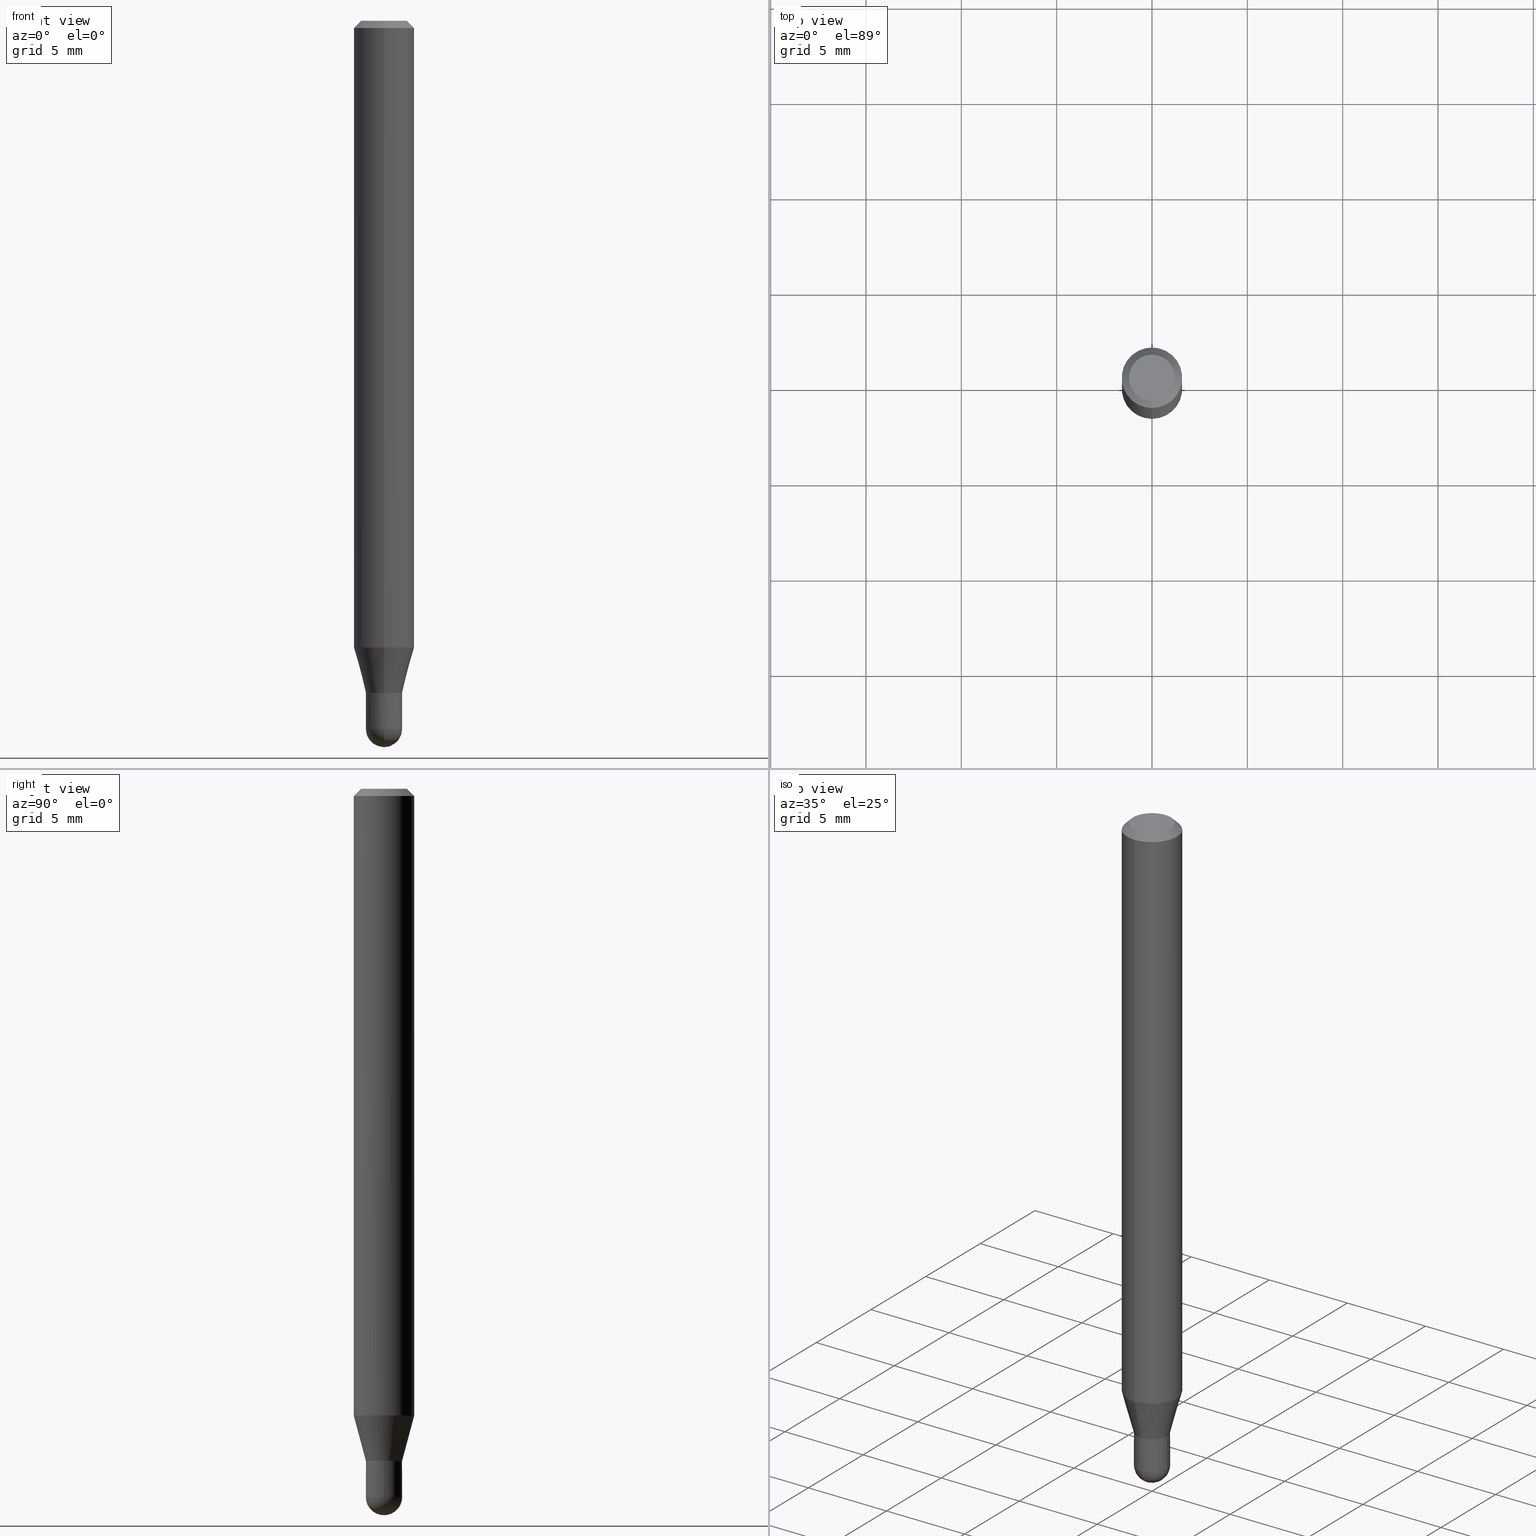
[diagram: canonical four-view strip — front | top / right | iso, engineering-drawing reading convention]
A machine part, canonical four-view strip (front | top / right | iso — engineering-drawing reading convention). The complete STEP part file that produces these views, byte-faithful:
ISO-10303-21;
HEADER;
FILE_DESCRIPTION (( 'STEP AP203' ),
    '1' );
FILE_NAME ('04376.STEP',
    '2024-03-08T18:59:31',
    ( '' ),
    ( '' ),
    'SwSTEP 2.0',
    'SolidWorks 2023',
    '' );
FILE_SCHEMA (( 'CONFIG_CONTROL_DESIGN' ));
ENDSEC;

DATA;
#1 = CALENDAR_DATE ( 2024, 8, 3 ) ;
#2 = EDGE_CURVE ( 'NONE', #266, #63, #361, .T. ) ;
#3 = AXIS2_PLACEMENT_3D ( 'NONE', #157, #316, #430 ) ;
#4 = DIRECTION ( 'NONE',  ( 2.445449223703286785E-29, -3.491509382071719844E-15, -1.000000000000000000 ) ) ;
#5 = EDGE_LOOP ( 'NONE', ( #209, #297, #113, #95 ) ) ;
#6 = CC_DESIGN_SECURITY_CLASSIFICATION ( #503, ( #38 ) ) ;
#7 = ADVANCED_FACE ( 'NONE', ( #278 ), #397, .T. ) ;
#8 = FACE_OUTER_BOUND ( 'NONE', #86, .T. ) ;
#9 = ORIENTED_EDGE ( 'NONE', *, *, #245, .T. ) ;
#10 = CARTESIAN_POINT ( 'NONE',  ( 3.668173835554947116E-31, -5.237264073107601830E-17, -0.01500000000000006710 ) ) ;
#11 = ORIENTED_EDGE ( 'NONE', *, *, #240, .F. ) ;
#12 = EDGE_CURVE ( 'NONE', #77, #261, #44, .T. ) ;
#13 = LINE ( 'NONE', #284, #219 ) ;
#14 = CYLINDRICAL_SURFACE ( 'NONE', #144, 0.06250000000000000000 ) ;
#15 = CARTESIAN_POINT ( 'NONE',  ( 2.646771690706718698E-16, 0.03699999999999514788, -1.387500000000000400 ) ) ;
#16 = CONICAL_SURFACE ( 'NONE', #468, 0.03750000000000018596, 0.2617993877991581231 ) ;
#17 = AXIS2_PLACEMENT_3D ( 'NONE', #451, #214, #413 ) ;
#18 = ORIENTED_EDGE ( 'NONE', *, *, #240, .T. ) ;
#19 = ADVANCED_FACE ( 'NONE', ( #118 ), #16, .T. ) ;
#20 = DIRECTION ( 'NONE',  ( -6.982962677686265922E-15, -1.000000000000000000, 3.491509382071719450E-15 ) ) ;
#21 = SPHERICAL_SURFACE ( 'NONE', #166, 0.03750000000000004718 ) ;
#22 = DIRECTION ( 'NONE',  ( -2.445468806185136597E-29, 3.491481338843145583E-15, 1.000000000000000000 ) ) ;
#23 = EDGE_CURVE ( 'NONE', #146, #261, #393, .T. ) ;
#24 = CIRCLE ( 'NONE', #441, 0.04749999999999999362 ) ;
#25 = AXIS2_PLACEMENT_3D ( 'NONE', #119, #433, #225 ) ;
#26 = FACE_OUTER_BOUND ( 'NONE', #138, .T. ) ;
#27 = ORIENTED_EDGE ( 'NONE', *, *, #509, .F. ) ;
#28 = VERTEX_POINT ( 'NONE', #115 ) ;
#29 = EDGE_CURVE ( 'NONE', #266, #478, #24, .T. ) ;
#30 = CALENDAR_DATE ( 2024, 8, 3 ) ;
#31 = ORIENTED_EDGE ( 'NONE', *, *, #213, .T. ) ;
#32 = DIRECTION ( 'NONE',  ( 1.000000000000000000, -6.982962677686265922E-15, 4.883557194083112901E-29 ) ) ;
#33 = ORIENTED_EDGE ( 'NONE', *, *, #162, .F. ) ;
#34 = APPROVAL_ROLE ( '' ) ;
#35 = CLOSED_SHELL ( 'NONE', ( #303, #325, #292, #291, #440 ) ) ;
#36 = AXIS2_PLACEMENT_3D ( 'NONE', #47, #194, #429 ) ;
#37 = CARTESIAN_POINT ( 'NONE',  ( -2.618611004132362835E-16, -0.03750000000000018596, 1.309316018276901351E-16 ) ) ;
#38 = PRODUCT_DEFINITION_FORMATION_WITH_SPECIFIED_SOURCE ( 'ANY', '', #140, .NOT_KNOWN. ) ;
#39 = ORIENTED_EDGE ( 'NONE', *, *, #29, .F. ) ;
#40 = COORDINATED_UNIVERSAL_TIME_OFFSET ( 5, 0, .BEHIND. ) ;
#41 = FACE_OUTER_BOUND ( 'NONE', #143, .T. ) ;
#42 = CARTESIAN_POINT ( 'NONE',  ( 3.393060797888311038E-29, -4.844469267624512368E-15, -1.387500000000000178 ) ) ;
#43 = CARTESIAN_POINT ( 'NONE',  ( 3.393060797888311598E-29, -4.844469267624513157E-15, -1.387500000000000400 ) ) ;
#44 = LINE ( 'NONE', #203, #480 ) ;
#45 = EDGE_CURVE ( 'NONE', #28, #148, #424, .T. ) ;
#46 = PERSON_AND_ORGANIZATION ( #437, #472 ) ;
#47 = CARTESIAN_POINT ( 'NONE',  ( 0.000000000000000000, 0.000000000000000000, 0.000000000000000000 ) ) ;
#48 = CIRCLE ( 'NONE', #252, 0.03749999999999999861 ) ;
#49 = CARTESIAN_POINT ( 'NONE',  ( -4.287811248607203282E-16, -0.06250000000000005551, -0.01499999999999984852 ) ) ;
#50 =( GEOMETRIC_REPRESENTATION_CONTEXT ( 3 ) GLOBAL_UNCERTAINTY_ASSIGNED_CONTEXT ( ( #208 ) ) GLOBAL_UNIT_ASSIGNED_CONTEXT ( ( #72, #425, #232 ) ) REPRESENTATION_CONTEXT ( 'NONE', 'WORKASPACE' ) );
#51 =( LENGTH_UNIT ( ) NAMED_UNIT ( * ) SI_UNIT ( $, .METRE. ) );
#52 = CARTESIAN_POINT ( 'NONE',  ( -2.618611004132032993E-16, -0.03750000000000516809, -1.387000000000000233 ) ) ;
#53 = EDGE_CURVE ( 'NONE', #77, #381, #403, .T. ) ;
#54 = CLOSED_SHELL ( 'NONE', ( #57, #314, #494, #489, #463, #19, #151, #7, #453, #249, #408, #192 ) ) ;
#55 = DIRECTION ( 'NONE',  ( -2.445449223703287346E-29, 3.491509382071719450E-15, 1.000000000000000000 ) ) ;
#56 = VECTOR ( 'NONE', #343, 39.37007874015748143 ) ;
#57 = ADVANCED_FACE ( 'NONE', ( #396 ), #318, .F. ) ;
#58 = ORIENTED_EDGE ( 'NONE', *, *, #418, .F. ) ;
#59 = AXIS2_PLACEMENT_3D ( 'NONE', #10, #271, #81 ) ;
#60 = ORIENTED_EDGE ( 'NONE', *, *, #12, .F. ) ;
#61 = APPROVAL_PERSON_ORGANIZATION ( #267, #248, #234 ) ;
#62 = DIRECTION ( 'NONE',  ( -2.445468806185136597E-29, 3.491481338843145583E-15, 1.000000000000000000 ) ) ;
#63 = VERTEX_POINT ( 'NONE', #401 ) ;
#64 = PLANE ( 'NONE',  #398 ) ;
#65 = DIRECTION ( 'NONE',  ( -6.982962677686265922E-15, -1.000000000000000000, 0.000000000000000000 ) ) ;
#66 = DIRECTION ( 'NONE',  ( -2.445449223703287346E-29, 3.491509382071719450E-15, 1.000000000000000000 ) ) ;
#67 = VERTEX_POINT ( 'NONE', #52 ) ;
#68 = CARTESIAN_POINT ( 'NONE',  ( 2.618611004132689227E-16, 0.03749999999999515526, -1.387500000000000178 ) ) ;
#69 = ORIENTED_EDGE ( 'NONE', *, *, #274, .T. ) ;
#70 = CARTESIAN_POINT ( 'NONE',  ( 0.000000000000000000, 0.000000000000000000, 0.000000000000000000 ) ) ;
#71 = EDGE_CURVE ( 'NONE', #409, #98, #344, .T. ) ;
#72 =( CONVERSION_BASED_UNIT ( 'INCH', #360 ) LENGTH_UNIT ( ) NAMED_UNIT ( #415 ) );
#73 = APPROVAL_STATUS ( 'not_yet_approved' ) ;
#74 = AXIS2_PLACEMENT_3D ( 'NONE', #366, #167, #246 ) ;
#75 = APPROVAL_PERSON_ORGANIZATION ( #222, #399, #34 ) ;
#76 = CARTESIAN_POINT ( 'NONE',  ( 3.573291255461339313E-29, -5.110883883554902297E-15, -1.462500000000000133 ) ) ;
#77 = VERTEX_POINT ( 'NONE', #280 ) ;
#78 = COORDINATED_UNIVERSAL_TIME_OFFSET ( 5, 0, .BEHIND. ) ;
#79 = DIRECTION ( 'NONE',  ( -6.982962677686265922E-15, -1.000000000000000000, 0.000000000000000000 ) ) ;
#80 = DIRECTION ( 'NONE',  ( -6.982962677686265922E-15, -1.000000000000000000, 0.000000000000000000 ) ) ;
#81 = DIRECTION ( 'NONE',  ( -6.982962677686265922E-15, -1.000000000000000000, 3.483106191921935554E-15 ) ) ;
#82 = CARTESIAN_POINT ( 'NONE',  ( 1.601742390469674696E-45, -2.286900308450406049E-31, -6.549890199903894046E-17 ) ) ;
#83 = VECTOR ( 'NONE', #320, 39.37007874015748143 ) ;
#84 = FACE_OUTER_BOUND ( 'NONE', #5, .T. ) ;
#85 = CIRCLE ( 'NONE', #59, 0.06250000000000000000 ) ;
#86 = EDGE_LOOP ( 'NONE', ( #39, #272, #263, #434 ) ) ;
#87 = CC_DESIGN_PERSON_AND_ORGANIZATION_ASSIGNMENT ( #497, #149, ( #503 ) ) ;
#88 = CARTESIAN_POINT ( 'NONE',  ( 3.393060797888311038E-29, -4.844469267624512368E-15, -1.387500000000000178 ) ) ;
#89 = DIRECTION ( 'NONE',  ( 4.937700262164548042E-15, 0.7071067811865451302, -0.7071067811865499042 ) ) ;
#90 = AXIS2_PLACEMENT_3D ( 'NONE', #101, #289, #134 ) ;
#91 = EDGE_CURVE ( 'NONE', #295, #77, #386, .T. ) ;
#92 = DESIGN_CONTEXT ( 'detailed design', #158, 'design' ) ;
#93 = VERTEX_POINT ( 'NONE', #428 ) ;
#94 = CYLINDRICAL_SURFACE ( 'NONE', #74, 0.03750000000000018596 ) ;
#95 = ORIENTED_EDGE ( 'NONE', *, *, #176, .F. ) ;
#96 = DIRECTION ( 'NONE',  ( -2.445449223703287346E-29, 3.491509382071719844E-15, 1.000000000000000000 ) ) ;
#97 = CONICAL_SURFACE ( 'NONE', #127, 0.03750000000000018596, 0.2617993877991581231 ) ;
#98 = VERTEX_POINT ( 'NONE', #124 ) ;
#99 = CARTESIAN_POINT ( 'NONE',  ( 3.576498129045762161E-29, -5.106291458058100676E-15, -1.462500000000000133 ) ) ;
#100 = FACE_OUTER_BOUND ( 'NONE', #372, .T. ) ;
#101 = CARTESIAN_POINT ( 'NONE',  ( 3.668173835554947116E-31, -5.237264073107601830E-17, -0.01500000000000006710 ) ) ;
#102 = ORIENTED_EDGE ( 'NONE', *, *, #202, .F. ) ;
#103 = VECTOR ( 'NONE', #170, 39.37007874015748143 ) ;
#104 = CIRCLE ( 'NONE', #436, 0.03749999999999999861 ) ;
#105 = DIRECTION ( 'NONE',  ( -6.982962677686266711E-15, -1.000000000000000000, 3.491509382071719844E-15 ) ) ;
#106 = PRODUCT_DEFINITION_SHAPE ( 'NONE', 'NONE',  #168 ) ;
#107 = ORIENTED_EDGE ( 'NONE', *, *, #332, .F. ) ;
#108 = CALENDAR_DATE ( 2024, 8, 3 ) ;
#109 = VERTEX_POINT ( 'NONE', #207 ) ;
#110 = DIRECTION ( 'NONE',  ( -2.445449223703287346E-29, 3.491509382071719450E-15, 1.000000000000000000 ) ) ;
#111 = EDGE_LOOP ( 'NONE', ( #420, #340, #304, #390 ) ) ;
#112 = APPROVAL_STATUS ( 'not_yet_approved' ) ;
#113 = ORIENTED_EDGE ( 'NONE', *, *, #402, .F. ) ;
#114 = CYLINDRICAL_SURFACE ( 'NONE', #36, 0.03749999999999999861 ) ;
#115 = CARTESIAN_POINT ( 'NONE',  ( 0.03749999999999999861, -5.106291458058100676E-15, -1.387500000000000178 ) ) ;
#116 = APPLICATION_PROTOCOL_DEFINITION ( 'international standard', 'config_control_design', 1994, #362 ) ;
#117 = PLANE ( 'NONE',  #321 ) ;
#118 = FACE_OUTER_BOUND ( 'NONE', #276, .T. ) ;
#119 = CARTESIAN_POINT ( 'NONE',  ( 3.668173835554947116E-31, -5.237264073107601830E-17, -0.01500000000000006710 ) ) ;
#120 = CARTESIAN_POINT ( 'NONE',  ( 0.000000000000000000, 0.000000000000000000, 0.000000000000000000 ) ) ;
#121 = CC_DESIGN_DATE_AND_TIME_ASSIGNMENT ( #193, #224, ( #168 ) ) ;
#122 = CIRCLE ( 'NONE', #230, 0.03749999999999999861 ) ;
#123 = DIRECTION ( 'NONE',  ( 1.000000000000000000, -6.982962677686268288E-15, 0.000000000000000000 ) ) ;
#124 = CARTESIAN_POINT ( 'NONE',  ( -0.03749999999999999861, -4.708907381941446552E-15, -1.462500000000000133 ) ) ;
#125 = FACE_OUTER_BOUND ( 'NONE', #177, .T. ) ;
#126 = CARTESIAN_POINT ( 'NONE',  ( -4.364351673553916201E-16, -0.06250000000000000000, 2.182193363794824656E-16 ) ) ;
#127 = AXIS2_PLACEMENT_3D ( 'NONE', #431, #238, #79 ) ;
#128 = ORIENTED_EDGE ( 'NONE', *, *, #29, .T. ) ;
#129 = DIRECTION ( 'NONE',  ( -6.982962677686265133E-15, -1.000000000000000000, 0.000000000000000000 ) ) ;
#130 = ORIENTED_EDGE ( 'NONE', *, *, #274, .F. ) ;
#131 = DIRECTION ( 'NONE',  ( -1.000000000000000000, 6.982962677686265922E-15, -4.883557194083112340E-29 ) ) ;
#132 = EDGE_CURVE ( 'NONE', #93, #109, #165, .T. ) ;
#133 = CC_DESIGN_DATE_AND_TIME_ASSIGNMENT ( #464, #467, ( #503 ) ) ;
#134 = DIRECTION ( 'NONE',  ( -6.982962677686265922E-15, -1.000000000000000000, 3.483106191921935554E-15 ) ) ;
#135 = CC_DESIGN_APPROVAL ( #399, ( #38 ) ) ;
#136 = CARTESIAN_POINT ( 'NONE',  ( -2.618611004132023625E-16, -0.03750000000000503625, -1.387500000000000178 ) ) ;
#137 = CARTESIAN_POINT ( 'NONE',  ( 3.573291255461339313E-29, -5.110883883554902297E-15, -1.462500000000000133 ) ) ;
#138 = EDGE_LOOP ( 'NONE', ( #359, #492, #447, #187, #31 ) ) ;
#139 = MECHANICAL_CONTEXT ( 'NONE', #362, 'mechanical' ) ;
#140 = PRODUCT ( '04376', '04376', '', ( #139 ) ) ;
#141 = EDGE_CURVE ( 'NONE', #478, #184, #444, .T. ) ;
#142 = CYLINDRICAL_SURFACE ( 'NONE', #356, 0.03749999999999999861 ) ;
#143 = EDGE_LOOP ( 'NONE', ( #462, #69, #324, #466, #11 ) ) ;
#144 = AXIS2_PLACEMENT_3D ( 'NONE', #172, #55, #20 ) ;
#145 = VECTOR ( 'NONE', #163, 39.37007874015748143 ) ;
#146 = VERTEX_POINT ( 'NONE', #15 ) ;
#147 = DIRECTION ( 'NONE',  ( -6.982962677686265922E-15, -1.000000000000000000, 0.000000000000000000 ) ) ;
#148 = VERTEX_POINT ( 'NONE', #371 ) ;
#149 = PERSON_AND_ORGANIZATION_ROLE ( 'classification_officer' ) ;
#150 = DIRECTION ( 'NONE',  ( -2.445468806185136597E-29, 3.491481338843145583E-15, 1.000000000000000000 ) ) ;
#151 = ADVANCED_FACE ( 'NONE', ( #287 ), #14, .T. ) ;
#152 = PERSON_AND_ORGANIZATION ( #437, #472 ) ;
#153 = CARTESIAN_POINT ( 'NONE',  ( 3.391838073276459989E-29, -4.842723512933476394E-15, -1.387000000000000233 ) ) ;
#154 = ORIENTED_EDGE ( 'NONE', *, *, #483, .F. ) ;
#155 = CONICAL_SURFACE ( 'NONE', #25, 0.06250000000000000000, 0.7853981633974483900 ) ;
#156 = CARTESIAN_POINT ( 'NONE',  ( -2.583696190743578270E-16, -0.03700000000000483458, -1.387500000000000400 ) ) ;
#157 = CARTESIAN_POINT ( 'NONE',  ( 3.668173835554947116E-31, -5.237264073107601830E-17, -0.01500000000000006710 ) ) ;
#158 = APPLICATION_CONTEXT ( 'configuration controlled 3d designs of mechanical parts and assemblies' ) ;
#159 = CARTESIAN_POINT ( 'NONE',  ( 3.164897279133557354E-29, -4.518707007399648771E-15, -1.294198729810782211 ) ) ;
#160 = DIRECTION ( 'NONE',  ( -2.445449223703287346E-29, 3.491509382071719450E-15, 1.000000000000000000 ) ) ;
#161 = CC_DESIGN_PERSON_AND_ORGANIZATION_ASSIGNMENT ( #385, #300, ( #38 ) ) ;
#162 = EDGE_CURVE ( 'NONE', #455, #67, #439, .T. ) ;
#163 = DIRECTION ( 'NONE',  ( -2.445468806185136877E-29, 3.491481338843145188E-15, 1.000000000000000000 ) ) ;
#164 = CARTESIAN_POINT ( 'NONE',  ( 2.629008122312709275E-16, 0.03699999999999514788, -1.387500000000000400 ) ) ;
#165 = CIRCLE ( 'NONE', #450, 0.03750000000000004718 ) ;
#166 = AXIS2_PLACEMENT_3D ( 'NONE', #331, #32, #491 ) ;
#167 = DIRECTION ( 'NONE',  ( -2.445449223703287346E-29, 3.491509382071719450E-15, 1.000000000000000000 ) ) ;
#168 = PRODUCT_DEFINITION ( 'UNKNOWN', '', #38, #92 ) ;
#169 = EDGE_CURVE ( 'NONE', #146, #455, #173, .T. ) ;
#170 = DIRECTION ( 'NONE',  ( -4.937700262164695559E-15, -0.7071067811865662245, 0.7071067811865289210 ) ) ;
#171 = AXIS2_PLACEMENT_3D ( 'NONE', #120, #481, #268 ) ;
#172 = CARTESIAN_POINT ( 'NONE',  ( 0.000000000000000000, 0.000000000000000000, 0.000000000000000000 ) ) ;
#173 = CIRCLE ( 'NONE', #279, 0.03699999999999999123 ) ;
#174 = DIRECTION ( 'NONE',  ( 1.000000000000000000, -6.982962677686268288E-15, 0.000000000000000000 ) ) ;
#175 = DIRECTION ( 'NONE',  ( 1.000000000000000000, -6.982962677686266711E-15, 4.876176775795935793E-29 ) ) ;
#176 = EDGE_CURVE ( 'NONE', #191, #63, #446, .T. ) ;
#177 = EDGE_LOOP ( 'NONE', ( #60, #512, #490, #355 ) ) ;
#178 = DIRECTION ( 'NONE',  ( -2.445449223703286785E-29, 3.491509382071719844E-15, 1.000000000000000000 ) ) ;
#179 = AXIS2_PLACEMENT_3D ( 'NONE', #137, #335, #65 ) ;
#180 = CARTESIAN_POINT ( 'NONE',  ( 3.393087968581877252E-29, -4.844430357644865674E-15, -1.387500000000000178 ) ) ;
#181 = ORIENTED_EDGE ( 'NONE', *, *, #258, .F. ) ;
#182 = EDGE_CURVE ( 'NONE', #109, #384, #104, .T. ) ;
#183 = DIRECTION ( 'NONE',  ( -2.445449223703287346E-29, 3.491509382071719450E-15, 1.000000000000000000 ) ) ;
#184 = VERTEX_POINT ( 'NONE', #363 ) ;
#185 = APPROVAL_DATE_TIME ( #473, #426 ) ;
#186 = DIRECTION ( 'NONE',  ( 1.000000000000000000, -6.982962677686268288E-15, 0.000000000000000000 ) ) ;
#187 = ORIENTED_EDGE ( 'NONE', *, *, #405, .F. ) ;
#188 = CIRCLE ( 'NONE', #470, 0.06250000000000000000 ) ;
#189 = LOCAL_TIME ( 13, 59, 31.00000000000000000, #78 ) ;
#190 = CYLINDRICAL_SURFACE ( 'NONE', #270, 0.06250000000000000000 ) ;
#191 = VERTEX_POINT ( 'NONE', #253 ) ;
#192 = ADVANCED_FACE ( 'NONE', ( #125 ), #94, .F. ) ;
#193 = DATE_AND_TIME ( #108, #290 ) ;
#194 = DIRECTION ( 'NONE',  ( -2.445468806185136597E-29, 3.491481338843145583E-15, 1.000000000000000000 ) ) ;
#195 = DIRECTION ( 'NONE',  ( -2.445468806185136597E-29, 3.491481338843145583E-15, 1.000000000000000000 ) ) ;
#196 = APPLICATION_PROTOCOL_DEFINITION ( 'international standard', 'config_control_design', 1994, #158 ) ;
#197 = DIRECTION ( 'NONE',  ( -6.982962677686265922E-15, -1.000000000000000000, 4.370956789862821150E-15 ) ) ;
#198 = ORIENTED_EDGE ( 'NONE', *, *, #182, .F. ) ;
#199 = CIRCLE ( 'NONE', #313, 0.03750000000000019290 ) ;
#200 = DIRECTION ( 'NONE',  ( -2.445449223703287346E-29, 3.491509382071719450E-15, 1.000000000000000000 ) ) ;
#201 = DIRECTION ( 'NONE',  ( -6.982962677686266711E-15, -1.000000000000000000, 3.491509382071719844E-15 ) ) ;
#202 = EDGE_CURVE ( 'NONE', #381, #184, #13, .T. ) ;
#203 = CARTESIAN_POINT ( 'NONE',  ( 2.664535259100388910E-16, 0.03750000000000018596, -1.309316018276901351E-16 ) ) ;
#204 = CIRCLE ( 'NONE', #90, 0.06250000000000000000 ) ;
#205 = CC_DESIGN_APPROVAL ( #248, ( #168 ) ) ;
#206 = CARTESIAN_POINT ( 'NONE',  ( 3.576498129045762161E-29, -5.106291458058100676E-15, -1.462500000000000133 ) ) ;
#207 = CARTESIAN_POINT ( 'NONE',  ( -2.618611004131994043E-16, -0.03750000000000513339, -1.462500000000000133 ) ) ;
#208 = UNCERTAINTY_MEASURE_WITH_UNIT (LENGTH_MEASURE( 1.000000000000000082E-05 ), #72, 'distance_accuracy_value', 'NONE');
#209 = ORIENTED_EDGE ( 'NONE', *, *, #352, .T. ) ;
#210 = DIRECTION ( 'NONE',  ( -2.445468806185136597E-29, 3.491481338843145583E-15, 1.000000000000000000 ) ) ;
#211 = CIRCLE ( 'NONE', #254, 0.06250000000000000000 ) ;
#212 = EDGE_LOOP ( 'NONE', ( #333, #388, #341, #215 ) ) ;
#213 = EDGE_CURVE ( 'NONE', #384, #409, #404, .T. ) ;
#214 = DIRECTION ( 'NONE',  ( -2.445449223703287346E-29, 3.491509382071719450E-15, 1.000000000000000000 ) ) ;
#215 = ORIENTED_EDGE ( 'NONE', *, *, #332, .T. ) ;
#216 = PLANE ( 'NONE',  #241 ) ;
#217 = FACE_OUTER_BOUND ( 'NONE', #227, .T. ) ;
#218 = EDGE_CURVE ( 'NONE', #98, #148, #376, .T. ) ;
#219 = VECTOR ( 'NONE', #407, 39.37007874015748143 ) ;
#220 = CARTESIAN_POINT ( 'NONE',  ( 0.03749999999999999861, -5.237222008264718177E-15, -1.462500000000000133 ) ) ;
#221 = ORIENTED_EDGE ( 'NONE', *, *, #169, .T. ) ;
#222 = PERSON_AND_ORGANIZATION ( #437, #472 ) ;
#223 = CARTESIAN_POINT ( 'NONE',  ( 0.000000000000000000, 0.000000000000000000, 0.000000000000000000 ) ) ;
#224 = DATE_TIME_ROLE ( 'creation_date' ) ;
#225 = DIRECTION ( 'NONE',  ( 6.982962677686265922E-15, 1.000000000000000000, -3.483106191921935554E-15 ) ) ;
#226 = CC_DESIGN_PERSON_AND_ORGANIZATION_ASSIGNMENT ( #423, #308, ( #140 ) ) ;
#227 = EDGE_LOOP ( 'NONE', ( #250, #18 ) ) ;
#228 = VECTOR ( 'NONE', #89, 39.37007874015748143 ) ;
#229 = APPROVAL_DATE_TIME ( #269, #248 ) ;
#230 = AXIS2_PLACEMENT_3D ( 'NONE', #180, #22, #380 ) ;
#231 = LOCAL_TIME ( 13, 59, 31.00000000000000000, #391 ) ;
#232 =( NAMED_UNIT ( * ) SI_UNIT ( $, .STERADIAN. ) SOLID_ANGLE_UNIT ( ) );
#233 = ORIENTED_EDGE ( 'NONE', *, *, #53, .T. ) ;
#234 = APPROVAL_ROLE ( '' ) ;
#235 = ADVANCED_BREP_SHAPE_REPRESENTATION ( '04376', ( #305, #482, #327 ), #50 ) ;
#236 = ORIENTED_EDGE ( 'NONE', *, *, #483, .T. ) ;
#237 = PERSON_AND_ORGANIZATION_ROLE ( 'creator' ) ;
#238 = DIRECTION ( 'NONE',  ( -2.445449223703287346E-29, 3.491509382071719450E-15, 1.000000000000000000 ) ) ;
#239 = CARTESIAN_POINT ( 'NONE',  ( 3.393087968581877252E-29, -4.844430357644865674E-15, -1.387500000000000178 ) ) ;
#240 = EDGE_CURVE ( 'NONE', #148, #28, #122, .T. ) ;
#241 = AXIS2_PLACEMENT_3D ( 'NONE', #68, #493, #294 ) ;
#242 = DIRECTION ( 'NONE',  ( -6.982962677686265922E-15, -1.000000000000000000, 0.000000000000000000 ) ) ;
#243 = CARTESIAN_POINT ( 'NONE',  ( 2.664535259100728121E-16, 0.03749999999999534261, -1.387500000000000178 ) ) ;
#244 = DIRECTION ( 'NONE',  ( -6.982962677686265922E-15, -1.000000000000000000, 0.000000000000000000 ) ) ;
#245 = EDGE_CURVE ( 'NONE', #77, #295, #456, .T. ) ;
#246 = DIRECTION ( 'NONE',  ( -6.982962677686265922E-15, -1.000000000000000000, 3.491509382071719450E-15 ) ) ;
#247 = ORIENTED_EDGE ( 'NONE', *, *, #91, .T. ) ;
#248 = APPROVAL ( #73, 'UNSPECIFIED' ) ;
#249 = ADVANCED_FACE ( 'NONE', ( #100 ), #64, .F. ) ;
#250 = ORIENTED_EDGE ( 'NONE', *, *, #45, .T. ) ;
#251 = VECTOR ( 'NONE', #432, 39.37007874015748854 ) ;
#252 = AXIS2_PLACEMENT_3D ( 'NONE', #99, #302, #259 ) ;
#253 = CARTESIAN_POINT ( 'NONE',  ( -4.364351673553602629E-16, -0.06250000000000455191, -1.294198729810781989 ) ) ;
#254 = AXIS2_PLACEMENT_3D ( 'NONE', #159, #465, #197 ) ;
#255 = APPROVAL_PERSON_ORGANIZATION ( #46, #426, #499 ) ;
#256 = ORIENTED_EDGE ( 'NONE', *, *, #342, .T. ) ;
#257 = CARTESIAN_POINT ( 'NONE',  ( 3.393060797888311038E-29, -4.844469267624512368E-15, -1.387500000000000178 ) ) ;
#258 = EDGE_CURVE ( 'NONE', #261, #67, #288, .T. ) ;
#259 = DIRECTION ( 'NONE',  ( 1.000000000000000000, -6.982962677686268288E-15, 0.000000000000000000 ) ) ;
#260 = CARTESIAN_POINT ( 'NONE',  ( 3.164897279133557354E-29, -4.518707007399648771E-15, -1.294198729810782211 ) ) ;
#261 = VERTEX_POINT ( 'NONE', #495 ) ;
#262 = CARTESIAN_POINT ( 'NONE',  ( 4.440892098500938748E-16, 0.06249999999999544809, -1.294198729810782433 ) ) ;
#263 = ORIENTED_EDGE ( 'NONE', *, *, #402, .T. ) ;
#264 = CALENDAR_DATE ( 2024, 8, 3 ) ;
#265 = CARTESIAN_POINT ( 'NONE',  ( 3.840629472727447874E-16, 0.04749999999999999362, -2.313455976474456035E-16 ) ) ;
#266 = VERTEX_POINT ( 'NONE', #339 ) ;
#267 = PERSON_AND_ORGANIZATION ( #437, #472 ) ;
#268 = DIRECTION ( 'NONE',  ( -6.982962677686265922E-15, -1.000000000000000000, 3.491509382071719450E-15 ) ) ;
#269 = DATE_AND_TIME ( #30, #231 ) ;
#270 = AXIS2_PLACEMENT_3D ( 'NONE', #317, #200, #309 ) ;
#271 = DIRECTION ( 'NONE',  ( -2.445449223703287346E-29, 3.491509382071719450E-15, 1.000000000000000000 ) ) ;
#272 = ORIENTED_EDGE ( 'NONE', *, *, #2, .T. ) ;
#273 = SHAPE_DEFINITION_REPRESENTATION ( #106, #235 ) ;
#274 = EDGE_CURVE ( 'NONE', #98, #109, #48, .T. ) ;
#275 = DIRECTION ( 'NONE',  ( -6.982962677686265133E-15, -1.000000000000000000, 0.000000000000000000 ) ) ;
#276 = EDGE_LOOP ( 'NONE', ( #301, #9, #256, #422 ) ) ;
#277 = DIRECTION ( 'NONE',  ( 1.000000000000000000, -7.105427357601001070E-15, 4.926315508542082329E-29 ) ) ;
#278 = FACE_OUTER_BOUND ( 'NONE', #212, .T. ) ;
#279 = AXIS2_PLACEMENT_3D ( 'NONE', #449, #485, #129 ) ;
#280 = CARTESIAN_POINT ( 'NONE',  ( 3.552713678800835899E-16, 0.03749999999999534261, -1.387500000000000178 ) ) ;
#281 = CARTESIAN_POINT ( 'NONE',  ( 3.576498129045762161E-29, -5.106291458058100676E-15, -1.462500000000000133 ) ) ;
#282 = AXIS2_PLACEMENT_3D ( 'NONE', #88, #307, #244 ) ;
#283 = AXIS2_PLACEMENT_3D ( 'NONE', #257, #110, #383 ) ;
#284 = CARTESIAN_POINT ( 'NONE',  ( 4.440892098500625669E-16, 0.06250000000000000000, -2.182193363794824656E-16 ) ) ;
#285 = ORIENTED_EDGE ( 'NONE', *, *, #132, .F. ) ;
#286 = ORIENTED_EDGE ( 'NONE', *, *, #169, .F. ) ;
#287 = FACE_OUTER_BOUND ( 'NONE', #498, .T. ) ;
#288 = CIRCLE ( 'NONE', #370, 0.03750000000000019290 ) ;
#289 = DIRECTION ( 'NONE',  ( -2.445449223703287346E-29, 3.491509382071719450E-15, 1.000000000000000000 ) ) ;
#290 = LOCAL_TIME ( 13, 59, 31.00000000000000000, #40 ) ;
#291 = ADVANCED_FACE ( 'NONE', ( #414 ), #461, .T. ) ;
#292 = ADVANCED_FACE ( 'NONE', ( #217 ), #216, .F. ) ;
#293 = LINE ( 'NONE', #296, #365 ) ;
#294 = DIRECTION ( 'NONE',  ( -1.000000000000000000, 6.982962677686265922E-15, -4.876176775795935793E-29 ) ) ;
#295 = VERTEX_POINT ( 'NONE', #136 ) ;
#296 = CARTESIAN_POINT ( 'NONE',  ( -2.618611004132023625E-16, -0.03750000000000503625, -1.387500000000000178 ) ) ;
#297 = ORIENTED_EDGE ( 'NONE', *, *, #202, .T. ) ;
#298 = AXIS2_PLACEMENT_3D ( 'NONE', #417, #66, #105 ) ;
#299 = CC_DESIGN_PERSON_AND_ORGANIZATION_ASSIGNMENT ( #152, #338, ( #38 ) ) ;
#300 = PERSON_AND_ORGANIZATION_ROLE ( 'creator' ) ;
#301 = ORIENTED_EDGE ( 'NONE', *, *, #53, .F. ) ;
#302 = DIRECTION ( 'NONE',  ( -2.445468806185136597E-29, 3.491481338843145583E-15, 1.000000000000000000 ) ) ;
#303 = ADVANCED_FACE ( 'NONE', ( #26 ), #142, .T. ) ;
#304 = ORIENTED_EDGE ( 'NONE', *, *, #258, .T. ) ;
#305 = MANIFOLD_SOLID_BREP ( 'Body-Move/Copy2[1]', #35 ) ;
#306 = CALENDAR_DATE ( 2024, 8, 3 ) ;
#307 = DIRECTION ( 'NONE',  ( -2.445449223703287346E-29, 3.491509382071719450E-15, 1.000000000000000000 ) ) ;
#308 = PERSON_AND_ORGANIZATION_ROLE ( 'design_owner' ) ;
#309 = DIRECTION ( 'NONE',  ( -6.982962677686265922E-15, -1.000000000000000000, 3.491509382071719450E-15 ) ) ;
#310 = ORIENTED_EDGE ( 'NONE', *, *, #342, .F. ) ;
#311 = AXIS2_PLACEMENT_3D ( 'NONE', #239, #195, #348 ) ;
#312 = PERSON_AND_ORGANIZATION ( #437, #472 ) ;
#313 = AXIS2_PLACEMENT_3D ( 'NONE', #153, #469, #242 ) ;
#314 = ADVANCED_FACE ( 'NONE', ( #454 ), #334, .T. ) ;
#315 = LINE ( 'NONE', #37, #442 ) ;
#316 = DIRECTION ( 'NONE',  ( 2.445449223703287346E-29, -3.491509382071719450E-15, -1.000000000000000000 ) ) ;
#317 = CARTESIAN_POINT ( 'NONE',  ( 0.000000000000000000, 0.000000000000000000, 0.000000000000000000 ) ) ;
#318 = CYLINDRICAL_SURFACE ( 'NONE', #171, 0.03750000000000018596 ) ;
#319 = DIRECTION ( 'NONE',  ( 7.105427357601000281E-15, 1.000000000000000000, 0.000000000000000000 ) ) ;
#320 = DIRECTION ( 'NONE',  ( 1.839019923739654352E-15, 0.2588190451025325634, 0.9659258262890650926 ) ) ;
#321 = AXIS2_PLACEMENT_3D ( 'NONE', #400, #4, #511 ) ;
#322 = DIRECTION ( 'NONE',  ( -2.445468806185136597E-29, 3.491481338843145583E-15, 1.000000000000000000 ) ) ;
#323 = CARTESIAN_POINT ( 'NONE',  ( -2.583696190743578270E-16, -0.03700000000000483458, -1.387500000000000400 ) ) ;
#324 = ORIENTED_EDGE ( 'NONE', *, *, #182, .T. ) ;
#325 = ADVANCED_FACE ( 'NONE', ( #374 ), #21, .T. ) ;
#326 = VECTOR ( 'NONE', #96, 39.37007874015748143 ) ;
#327 = AXIS2_PLACEMENT_3D ( 'NONE', #70, #459, #349 ) ;
#328 = CARTESIAN_POINT ( 'NONE',  ( 3.573291255461339313E-29, -5.110883883554902297E-15, -1.462500000000000133 ) ) ;
#329 = ORIENTED_EDGE ( 'NONE', *, *, #352, .F. ) ;
#330 = ORIENTED_EDGE ( 'NONE', *, *, #162, .T. ) ;
#331 = CARTESIAN_POINT ( 'NONE',  ( 3.573291255461339313E-29, -5.110883883554902297E-15, -1.462500000000000133 ) ) ;
#332 = EDGE_CURVE ( 'NONE', #184, #63, #204, .T. ) ;
#333 = ORIENTED_EDGE ( 'NONE', *, *, #2, .F. ) ;
#334 = CONICAL_SURFACE ( 'NONE', #17, 0.03699999999999999123, 0.7853981633974781440 ) ;
#335 = DIRECTION ( 'NONE',  ( 1.000000000000000000, -6.982962677686265922E-15, 4.883557194083112901E-29 ) ) ;
#336 = DIRECTION ( 'NONE',  ( -6.982962677686265922E-15, -1.000000000000000000, 3.491509382071719844E-15 ) ) ;
#337 = ORIENTED_EDGE ( 'NONE', *, *, #23, .F. ) ;
#338 = PERSON_AND_ORGANIZATION_ROLE ( 'design_supplier' ) ;
#339 = CARTESIAN_POINT ( 'NONE',  ( -3.773273898774340269E-16, -0.04749999999999999362, 1.003477936493677349E-16 ) ) ;
#340 = ORIENTED_EDGE ( 'NONE', *, *, #12, .T. ) ;
#341 = ORIENTED_EDGE ( 'NONE', *, *, #141, .T. ) ;
#342 = EDGE_CURVE ( 'NONE', #295, #191, #293, .T. ) ;
#343 = DIRECTION ( 'NONE',  ( -2.445468806185136877E-29, 3.491481338843145188E-15, 1.000000000000000000 ) ) ;
#344 = CIRCLE ( 'NONE', #369, 0.03749999999999999861 ) ;
#345 = ORIENTED_EDGE ( 'NONE', *, *, #213, .F. ) ;
#346 = AXIS2_PLACEMENT_3D ( 'NONE', #76, #277, #319 ) ;
#347 = COORDINATED_UNIVERSAL_TIME_OFFSET ( 5, 0, .BEHIND. ) ;
#348 = DIRECTION ( 'NONE',  ( 1.000000000000000000, -6.982962677686268288E-15, 0.000000000000000000 ) ) ;
#349 = DIRECTION ( 'NONE',  ( 1.000000000000000000, 0.000000000000000000, 0.000000000000000000 ) ) ;
#350 = CARTESIAN_POINT ( 'NONE',  ( 3.393060797888311598E-29, -4.844469267624513157E-15, -1.387500000000000400 ) ) ;
#351 = ORIENTED_EDGE ( 'NONE', *, *, #435, .T. ) ;
#352 = EDGE_CURVE ( 'NONE', #191, #381, #188, .T. ) ;
#353 = COORDINATED_UNIVERSAL_TIME_OFFSET ( 5, 0, .BEHIND. ) ;
#354 = FACE_OUTER_BOUND ( 'NONE', #496, .T. ) ;
#355 = ORIENTED_EDGE ( 'NONE', *, *, #509, .T. ) ;
#356 = AXIS2_PLACEMENT_3D ( 'NONE', #223, #62, #175 ) ;
#357 = LOCAL_TIME ( 13, 59, 31.00000000000000000, #353 ) ;
#358 = LINE ( 'NONE', #392, #145 ) ;
#359 = ORIENTED_EDGE ( 'NONE', *, *, #71, .T. ) ;
#360 = LENGTH_MEASURE_WITH_UNIT ( LENGTH_MEASURE( 0.02539999999999999897 ), #51 );
#361 = LINE ( 'NONE', #49, #364 ) ;
#362 = APPLICATION_CONTEXT ( 'configuration controlled 3d designs of mechanical parts and assemblies' ) ;
#363 = CARTESIAN_POINT ( 'NONE',  ( 4.440892098500944664E-16, 0.06249999999999995143, -0.01500000000000028394 ) ) ;
#364 = VECTOR ( 'NONE', #471, 39.37007874015748143 ) ;
#365 = VECTOR ( 'NONE', #457, 39.37007874015748143 ) ;
#366 = CARTESIAN_POINT ( 'NONE',  ( 0.000000000000000000, 0.000000000000000000, 0.000000000000000000 ) ) ;
#367 = CARTESIAN_POINT ( 'NONE',  ( 4.364351673553919652E-16, 0.06249999999999995143, -0.01500000000000028394 ) ) ;
#368 = EDGE_LOOP ( 'NONE', ( #236, #504, #27, #33 ) ) ;
#369 = AXIS2_PLACEMENT_3D ( 'NONE', #508, #150, #123 ) ;
#370 = AXIS2_PLACEMENT_3D ( 'NONE', #502, #183, #147 ) ;
#371 = CARTESIAN_POINT ( 'NONE',  ( -0.03749999999999999861, -4.708907381941446552E-15, -1.387500000000000178 ) ) ;
#372 = EDGE_LOOP ( 'NONE', ( #154, #286 ) ) ;
#373 = EDGE_CURVE ( 'NONE', #478, #266, #410, .T. ) ;
#374 = FACE_OUTER_BOUND ( 'NONE', #488, .T. ) ;
#375 = CC_DESIGN_PERSON_AND_ORGANIZATION_ASSIGNMENT ( #312, #237, ( #168 ) ) ;
#376 = LINE ( 'NONE', #411, #56 ) ;
#377 = CIRCLE ( 'NONE', #346, 0.03750000000000004718 ) ;
#378 = DIRECTION ( 'NONE',  ( -6.982962677686265922E-15, -1.000000000000000000, 4.370956789862821150E-15 ) ) ;
#379 = LOCAL_TIME ( 13, 59, 31.00000000000000000, #347 ) ;
#380 = DIRECTION ( 'NONE',  ( 1.000000000000000000, -6.982962677686268288E-15, 0.000000000000000000 ) ) ;
#381 = VERTEX_POINT ( 'NONE', #262 ) ;
#382 = APPROVAL_DATE_TIME ( #510, #399 ) ;
#383 = DIRECTION ( 'NONE',  ( -6.982962677686265922E-15, -1.000000000000000000, 0.000000000000000000 ) ) ;
#384 = VERTEX_POINT ( 'NONE', #220 ) ;
#385 = PERSON_AND_ORGANIZATION ( #437, #472 ) ;
#386 = CIRCLE ( 'NONE', #282, 0.03750000000000018596 ) ;
#387 = AXIS2_PLACEMENT_3D ( 'NONE', #43, #477, #474 ) ;
#388 = ORIENTED_EDGE ( 'NONE', *, *, #373, .F. ) ;
#389 = DIRECTION ( 'NONE',  ( -2.445449223703287346E-29, 3.491509382071719450E-15, 1.000000000000000000 ) ) ;
#390 = ORIENTED_EDGE ( 'NONE', *, *, #476, .F. ) ;
#391 = COORDINATED_UNIVERSAL_TIME_OFFSET ( 5, 0, .BEHIND. ) ;
#392 = CARTESIAN_POINT ( 'NONE',  ( 0.03749999999999999861, -2.618611004132350016E-16, 1.828566290923475922E-30 ) ) ;
#393 = LINE ( 'NONE', #164, #251 ) ;
#394 = APPROVAL_STATUS ( 'not_yet_approved' ) ;
#395 = DIRECTION ( 'NONE',  ( -2.445449223703287346E-29, 3.491509382071719844E-15, 1.000000000000000000 ) ) ;
#396 = FACE_OUTER_BOUND ( 'NONE', #111, .T. ) ;
#397 = CONICAL_SURFACE ( 'NONE', #3, 0.06250000000000000000, 0.7853981633974483900 ) ;
#398 = AXIS2_PLACEMENT_3D ( 'NONE', #419, #178, #336 ) ;
#399 = APPROVAL ( #394, 'UNSPECIFIED' ) ;
#400 = CARTESIAN_POINT ( 'NONE',  ( 3.316907271900976096E-16, 0.04749999999999999362, -1.985961466479261332E-16 ) ) ;
#401 = CARTESIAN_POINT ( 'NONE',  ( -4.364351673553912750E-16, -0.06250000000000005551, -0.01499999999999984852 ) ) ;
#402 = EDGE_CURVE ( 'NONE', #63, #184, #85, .T. ) ;
#403 = LINE ( 'NONE', #243, #83 ) ;
#404 = CIRCLE ( 'NONE', #427, 0.03749999999999999861 ) ;
#405 = EDGE_CURVE ( 'NONE', #384, #28, #358, .T. ) ;
#406 = ORIENTED_EDGE ( 'NONE', *, *, #71, .F. ) ;
#407 = DIRECTION ( 'NONE',  ( -2.445449223703287346E-29, 3.491509382071719844E-15, 1.000000000000000000 ) ) ;
#408 = ADVANCED_FACE ( 'NONE', ( #354 ), #501, .T. ) ;
#409 = VERTEX_POINT ( 'NONE', #421 ) ;
#410 = CIRCLE ( 'NONE', #298, 0.04749999999999999362 ) ;
#411 = CARTESIAN_POINT ( 'NONE',  ( -0.03749999999999999861, 2.664535259100375598E-16, -1.844600658845589808E-30 ) ) ;
#412 = ORIENTED_EDGE ( 'NONE', *, *, #418, .T. ) ;
#413 = DIRECTION ( 'NONE',  ( -6.982962677686265133E-15, -1.000000000000000000, 0.000000000000000000 ) ) ;
#414 = FACE_OUTER_BOUND ( 'NONE', #445, .T. ) ;
#415 = DIMENSIONAL_EXPONENTS ( 1.000000000000000000, 0.000000000000000000, 0.000000000000000000, 0.000000000000000000, 0.000000000000000000, 0.000000000000000000, 0.000000000000000000 ) ;
#416 = CIRCLE ( 'NONE', #387, 0.03699999999999999123 ) ;
#417 = CARTESIAN_POINT ( 'NONE',  ( 1.601742390469674696E-45, -2.286900308450406049E-31, -6.549890199903894046E-17 ) ) ;
#418 = EDGE_CURVE ( 'NONE', #93, #409, #377, .T. ) ;
#419 = CARTESIAN_POINT ( 'NONE',  ( 3.393060797888311598E-29, -4.844469267624513157E-15, -1.387500000000000400 ) ) ;
#420 = ORIENTED_EDGE ( 'NONE', *, *, #245, .F. ) ;
#421 = CARTESIAN_POINT ( 'NONE',  ( 2.664535259100734037E-16, 0.03749999999999491240, -1.462500000000000133 ) ) ;
#422 = ORIENTED_EDGE ( 'NONE', *, *, #435, .F. ) ;
#423 = PERSON_AND_ORGANIZATION ( #437, #472 ) ;
#424 = CIRCLE ( 'NONE', #311, 0.03749999999999999861 ) ;
#425 =( NAMED_UNIT ( * ) PLANE_ANGLE_UNIT ( ) SI_UNIT ( $, .RADIAN. ) );
#426 = APPROVAL ( #112, 'UNSPECIFIED' ) ;
#427 = AXIS2_PLACEMENT_3D ( 'NONE', #281, #210, #186 ) ;
#428 = CARTESIAN_POINT ( 'NONE',  ( 3.663392898901070905E-29, -5.244110646509921398E-15, -1.500000000000000222 ) ) ;
#429 = DIRECTION ( 'NONE',  ( 1.000000000000000000, -6.982962677686266711E-15, 4.876176775795935793E-29 ) ) ;
#430 = DIRECTION ( 'NONE',  ( 6.982962677686265922E-15, 1.000000000000000000, -3.483106191921935554E-15 ) ) ;
#431 = CARTESIAN_POINT ( 'NONE',  ( 3.393060797888311038E-29, -4.844469267624512368E-15, -1.387500000000000178 ) ) ;
#432 = DIRECTION ( 'NONE',  ( 5.024295867788211484E-15, 0.7071067811865709984, 0.7071067811865239250 ) ) ;
#433 = DIRECTION ( 'NONE',  ( 2.445449223703287346E-29, -3.491509382071719450E-15, -1.000000000000000000 ) ) ;
#434 = ORIENTED_EDGE ( 'NONE', *, *, #141, .F. ) ;
#435 = EDGE_CURVE ( 'NONE', #381, #191, #211, .T. ) ;
#436 = AXIS2_PLACEMENT_3D ( 'NONE', #206, #322, #174 ) ;
#437 = PERSON ( 'UNSPECIFIED', 'UNSPECIFIED', 'UNSPECIFIED', ('UNSPECIFIED'), ('UNSPECIFIED'), ('UNSPECIFIED') ) ;
#438 = DIRECTION ( 'NONE',  ( -2.445449223703287346E-29, 3.491509382071719450E-15, 1.000000000000000000 ) ) ;
#439 = LINE ( 'NONE', #323, #103 ) ;
#440 = ADVANCED_FACE ( 'NONE', ( #41 ), #114, .T. ) ;
#441 = AXIS2_PLACEMENT_3D ( 'NONE', #82, #438, #201 ) ;
#442 = VECTOR ( 'NONE', #395, 39.37007874015748143 ) ;
#443 = CC_DESIGN_APPROVAL ( #426, ( #503 ) ) ;
#444 = LINE ( 'NONE', #367, #228 ) ;
#445 = EDGE_LOOP ( 'NONE', ( #58, #448, #130, #406 ) ) ;
#446 = LINE ( 'NONE', #126, #326 ) ;
#447 = ORIENTED_EDGE ( 'NONE', *, *, #45, .F. ) ;
#448 = ORIENTED_EDGE ( 'NONE', *, *, #132, .T. ) ;
#449 = CARTESIAN_POINT ( 'NONE',  ( 3.393060797888311598E-29, -4.844469267624513157E-15, -1.387500000000000400 ) ) ;
#450 = AXIS2_PLACEMENT_3D ( 'NONE', #328, #131, #484 ) ;
#451 = CARTESIAN_POINT ( 'NONE',  ( 3.393060797888311598E-29, -4.844469267624513157E-15, -1.387500000000000400 ) ) ;
#452 = DIRECTION ( 'NONE',  ( -2.445449223703287346E-29, 3.491509382071719450E-15, 1.000000000000000000 ) ) ;
#453 = ADVANCED_FACE ( 'NONE', ( #479 ), #117, .F. ) ;
#454 = FACE_OUTER_BOUND ( 'NONE', #368, .T. ) ;
#455 = VERTEX_POINT ( 'NONE', #156 ) ;
#456 = CIRCLE ( 'NONE', #283, 0.03750000000000018596 ) ;
#457 = DIRECTION ( 'NONE',  ( -1.807323732225383387E-15, -0.2588190451025257910, 0.9659258262890669799 ) ) ;
#458 = ORIENTED_EDGE ( 'NONE', *, *, #176, .T. ) ;
#459 = DIRECTION ( 'NONE',  ( 0.000000000000000000, 0.000000000000000000, 1.000000000000000000 ) ) ;
#460 = EDGE_LOOP ( 'NONE', ( #500, #128 ) ) ;
#461 = SPHERICAL_SURFACE ( 'NONE', #179, 0.03750000000000004718 ) ;
#462 = ORIENTED_EDGE ( 'NONE', *, *, #218, .F. ) ;
#463 = ADVANCED_FACE ( 'NONE', ( #507 ), #97, .T. ) ;
#464 = DATE_AND_TIME ( #306, #189 ) ;
#465 = DIRECTION ( 'NONE',  ( -2.445449223703287346E-29, 3.491509382071719450E-15, 1.000000000000000000 ) ) ;
#466 = ORIENTED_EDGE ( 'NONE', *, *, #405, .T. ) ;
#467 = DATE_TIME_ROLE ( 'classification_date' ) ;
#468 = AXIS2_PLACEMENT_3D ( 'NONE', #42, #160, #80 ) ;
#469 = DIRECTION ( 'NONE',  ( -2.445449223703287346E-29, 3.491509382071719450E-15, 1.000000000000000000 ) ) ;
#470 = AXIS2_PLACEMENT_3D ( 'NONE', #260, #452, #378 ) ;
#471 = DIRECTION ( 'NONE',  ( -4.851104656540964275E-15, -0.7071067811865500152, -0.7071067811865450192 ) ) ;
#472 = ORGANIZATION ( 'UNSPECIFIED', 'UNSPECIFIED', '' ) ;
#473 = DATE_AND_TIME ( #1, #357 ) ;
#474 = DIRECTION ( 'NONE',  ( -6.982962677686265133E-15, -1.000000000000000000, 0.000000000000000000 ) ) ;
#475 = DIRECTION ( 'NONE',  ( -2.445449223703287346E-29, 3.491509382071719844E-15, 1.000000000000000000 ) ) ;
#476 = EDGE_CURVE ( 'NONE', #295, #67, #315, .T. ) ;
#477 = DIRECTION ( 'NONE',  ( -2.445449223703287346E-29, 3.491509382071719450E-15, 1.000000000000000000 ) ) ;
#478 = VERTEX_POINT ( 'NONE', #265 ) ;
#479 = FACE_OUTER_BOUND ( 'NONE', #460, .T. ) ;
#480 = VECTOR ( 'NONE', #475, 39.37007874015748143 ) ;
#481 = DIRECTION ( 'NONE',  ( -2.445449223703287346E-29, 3.491509382071719450E-15, 1.000000000000000000 ) ) ;
#482 = MANIFOLD_SOLID_BREP ( 'Body-Move/Copy2[2]', #54 ) ;
#483 = EDGE_CURVE ( 'NONE', #455, #146, #416, .T. ) ;
#484 = DIRECTION ( 'NONE',  ( -6.982962677686264344E-15, -1.000000000000000000, 0.000000000000000000 ) ) ;
#485 = DIRECTION ( 'NONE',  ( -2.445449223703287346E-29, 3.491509382071719450E-15, 1.000000000000000000 ) ) ;
#486 = AXIS2_PLACEMENT_3D ( 'NONE', #350, #389, #275 ) ;
#487 = EDGE_LOOP ( 'NONE', ( #247, #233, #329, #310 ) ) ;
#488 = EDGE_LOOP ( 'NONE', ( #285, #412, #345, #198 ) ) ;
#489 = ADVANCED_FACE ( 'NONE', ( #84 ), #190, .T. ) ;
#490 = ORIENTED_EDGE ( 'NONE', *, *, #476, .T. ) ;
#491 = DIRECTION ( 'NONE',  ( -6.982962677686265922E-15, -1.000000000000000000, 0.000000000000000000 ) ) ;
#492 = ORIENTED_EDGE ( 'NONE', *, *, #218, .T. ) ;
#493 = DIRECTION ( 'NONE',  ( 2.438088387897960049E-29, -3.491481338843145188E-15, -1.000000000000000000 ) ) ;
#494 = ADVANCED_FACE ( 'NONE', ( #8 ), #155, .T. ) ;
#495 = CARTESIAN_POINT ( 'NONE',  ( 2.664535259100719246E-16, 0.03749999999999521771, -1.387000000000000233 ) ) ;
#496 = EDGE_LOOP ( 'NONE', ( #337, #221, #330, #181 ) ) ;
#497 = PERSON_AND_ORGANIZATION ( #437, #472 ) ;
#498 = EDGE_LOOP ( 'NONE', ( #102, #351, #458, #107 ) ) ;
#499 = APPROVAL_ROLE ( '' ) ;
#500 = ORIENTED_EDGE ( 'NONE', *, *, #373, .T. ) ;
#501 = CONICAL_SURFACE ( 'NONE', #486, 0.03699999999999999123, 0.7853981633974781440 ) ;
#502 = CARTESIAN_POINT ( 'NONE',  ( 3.391838073276459989E-29, -4.842723512933476394E-15, -1.387000000000000233 ) ) ;
#503 = SECURITY_CLASSIFICATION ( '', '', #506 ) ;
#504 = ORIENTED_EDGE ( 'NONE', *, *, #23, .T. ) ;
#505 = PRODUCT_RELATED_PRODUCT_CATEGORY ( 'detail', '', ( #140 ) ) ;
#506 = SECURITY_CLASSIFICATION_LEVEL ( 'unclassified' ) ;
#507 = FACE_OUTER_BOUND ( 'NONE', #487, .T. ) ;
#508 = CARTESIAN_POINT ( 'NONE',  ( 3.576498129045762161E-29, -5.106291458058100676E-15, -1.462500000000000133 ) ) ;
#509 = EDGE_CURVE ( 'NONE', #67, #261, #199, .T. ) ;
#510 = DATE_AND_TIME ( #264, #379 ) ;
#511 = DIRECTION ( 'NONE',  ( 6.982962677686265922E-15, 1.000000000000000000, -3.491509382071719844E-15 ) ) ;
#512 = ORIENTED_EDGE ( 'NONE', *, *, #91, .F. ) ;
ENDSEC;
END-ISO-10303-21;
